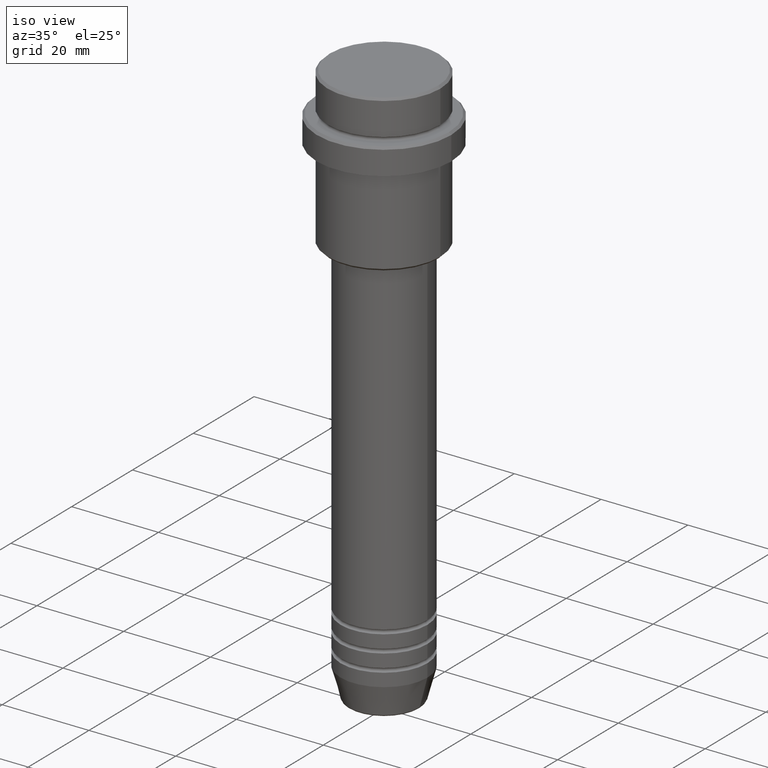
[diagram: clean part render]
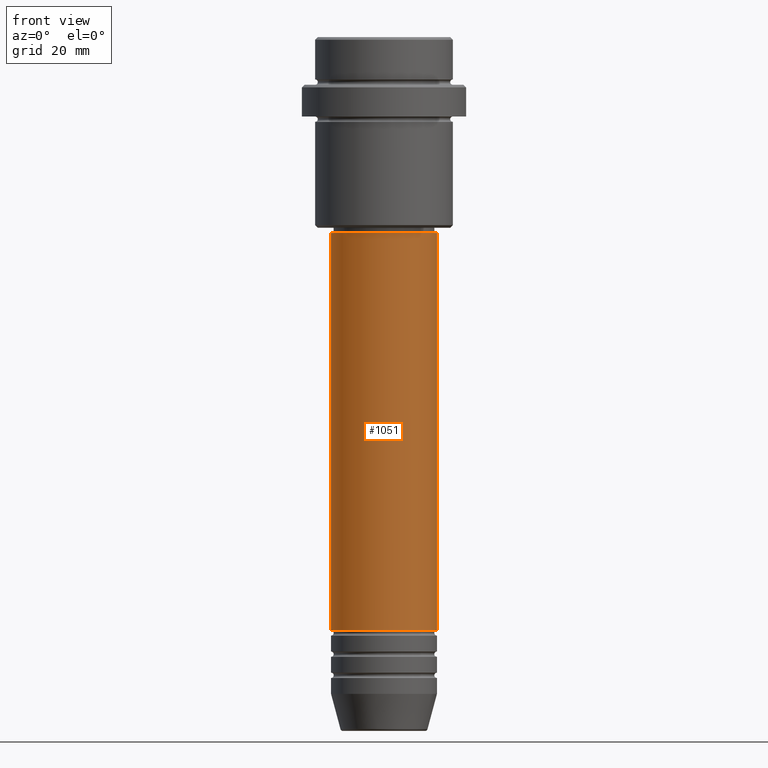
[diagram: tour spotlight — one face highlighted and labeled with its STEP entity id]
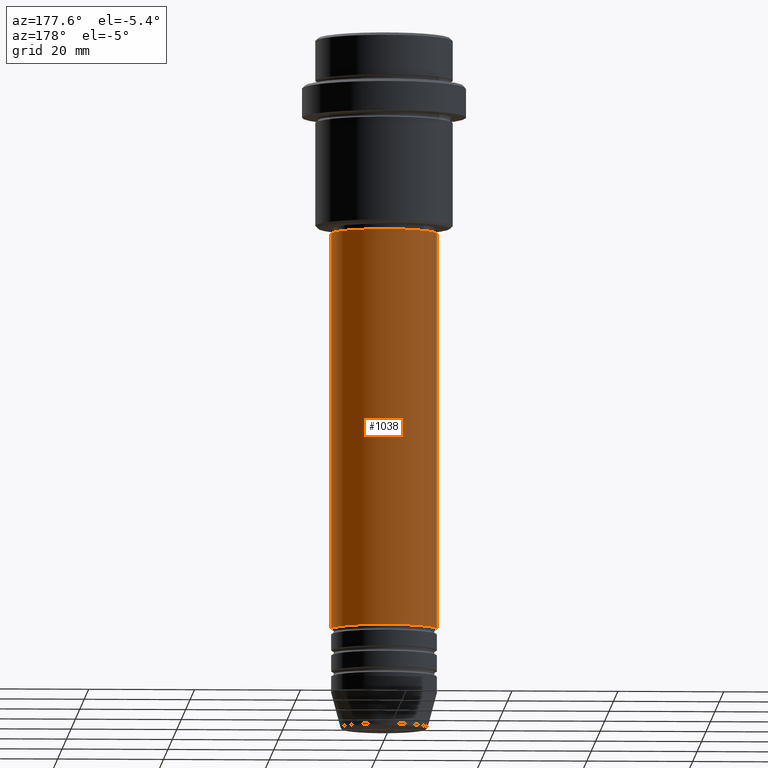
[diagram: tour spotlight — one face highlighted and labeled with its STEP entity id]
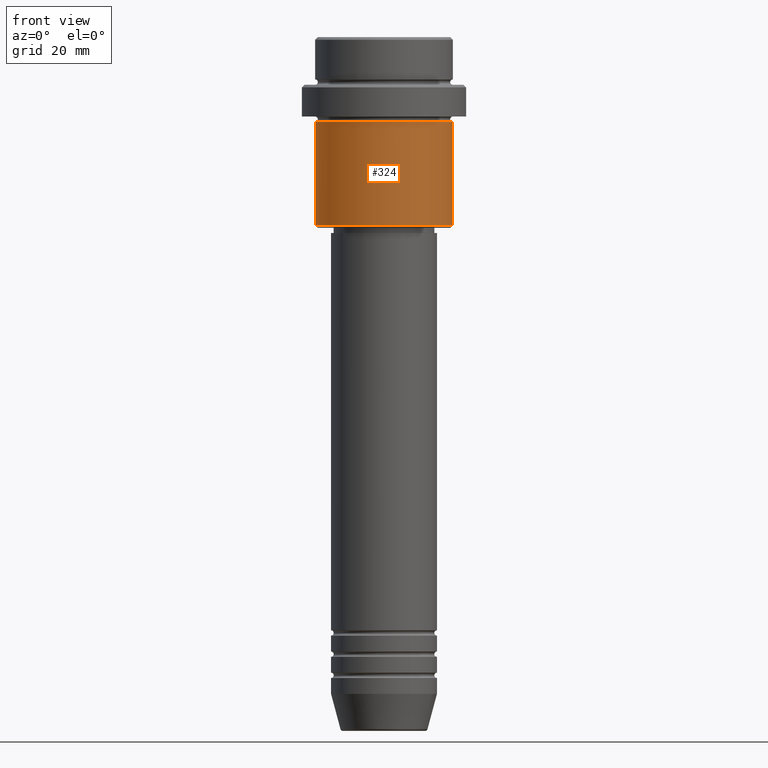
[diagram: tour spotlight — one face highlighted and labeled with its STEP entity id]
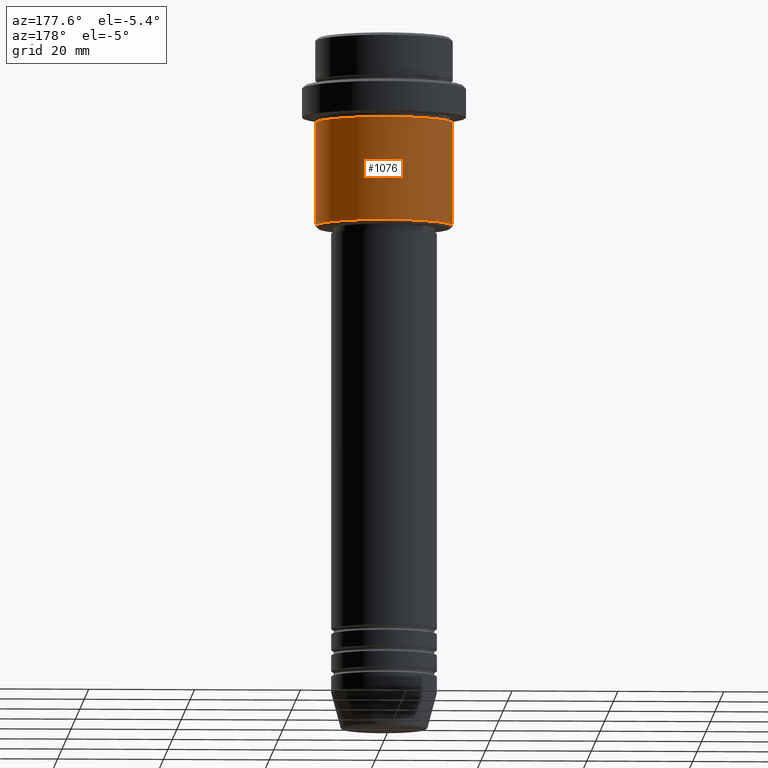
[diagram: tour spotlight — one face highlighted and labeled with its STEP entity id]
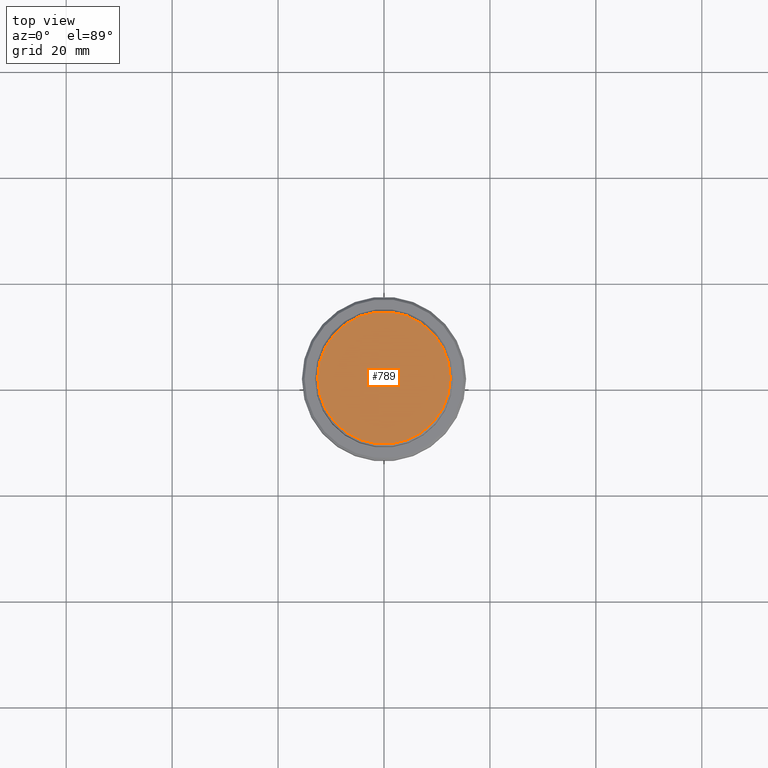
[diagram: tour spotlight — one face highlighted and labeled with its STEP entity id]
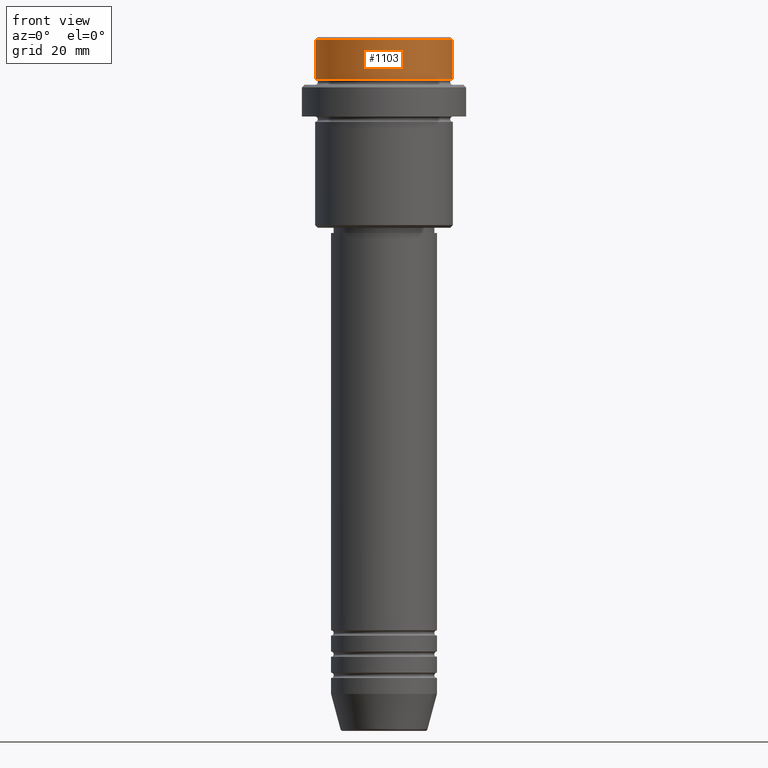
[diagram: tour spotlight — one face highlighted and labeled with its STEP entity id]
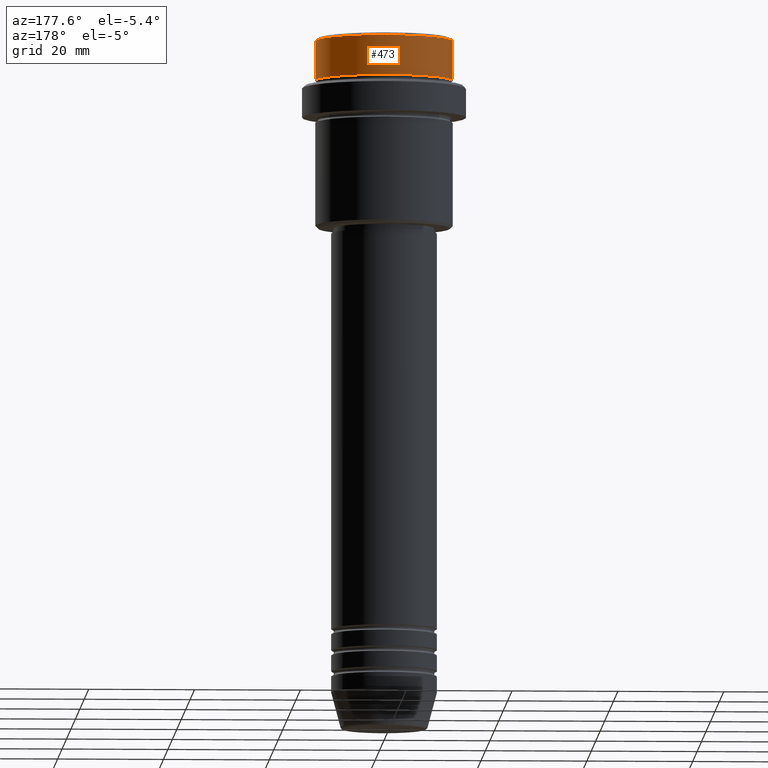
[diagram: tour spotlight — one face highlighted and labeled with its STEP entity id]
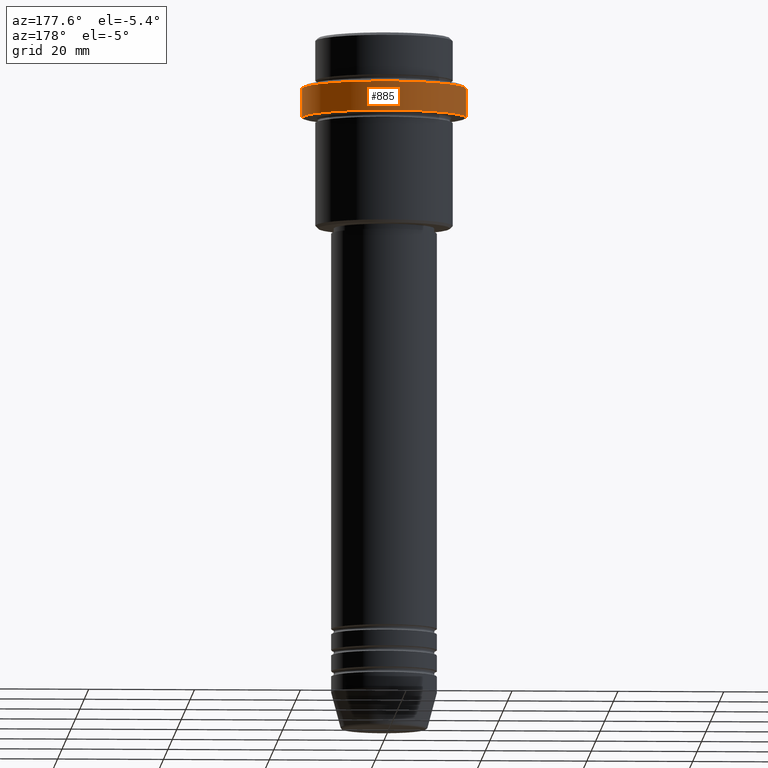
[diagram: tour spotlight — one face highlighted and labeled with its STEP entity id]
A machine part: a face-by-face anatomy tour. The part has 52 B-rep faces; the first image is the clean iso view, then the 8 largest visible faces are spotlighted one at a time (largest first), each with its STEP entity span.

Face 1 — front view, entity #1051. In plain terms, the highlighted cylindrical surface (partial cylindrical patch) has radius 10 mm, axis along (-0, -0, 1).
Definition (entity closure, byte-faithful):
#5 = DIRECTION ( 'NONE',  ( 1.000000000000000000, 0.000000000000000000, 0.000000000000000000 ) ) ;
#32 = ORIENTED_EDGE ( 'NONE', *, *, #422, .F. ) ;
#71 = VERTEX_POINT ( 'NONE', #961 ) ;
#75 = VERTEX_POINT ( 'NONE', #1401 ) ;
#112 = DIRECTION ( 'NONE',  ( -0.000000000000000000, -0.000000000000000000, 1.000000000000000000 ) ) ;
#125 = CARTESIAN_POINT ( 'NONE',  ( 10.00000000000000178, 0.000000000000000000, 0.000000000000000000 ) ) ;
#174 = EDGE_LOOP ( 'NONE', ( #576, #281, #233, #32 ) ) ;
#233 = ORIENTED_EDGE ( 'NONE', *, *, #1403, .T. ) ;
#237 = VERTEX_POINT ( 'NONE', #699 ) ;
#273 = CARTESIAN_POINT ( 'NONE',  ( 0.000000000000000000, 0.000000000000000000, 0.000000000000000000 ) ) ;
#281 = ORIENTED_EDGE ( 'NONE', *, *, #1381, .T. ) ;
#422 = EDGE_CURVE ( 'NONE', #237, #599, #1215, .T. ) ;
#516 = CIRCLE ( 'NONE', #1387, 10.00000000000000000 ) ;
#546 = CARTESIAN_POINT ( 'NONE',  ( 0.000000000000000000, 0.000000000000000000, -36.99999999999997158 ) ) ;
#555 = DIRECTION ( 'NONE',  ( -0.000000000000000000, -0.000000000000000000, 1.000000000000000000 ) ) ;
#565 = DIRECTION ( 'NONE',  ( -0.000000000000000000, -0.000000000000000000, 1.000000000000000000 ) ) ;
#576 = ORIENTED_EDGE ( 'NONE', *, *, #729, .F. ) ;
#592 = FACE_OUTER_BOUND ( 'NONE', #174, .T. ) ;
#599 = VERTEX_POINT ( 'NONE', #618 ) ;
#601 = DIRECTION ( 'NONE',  ( 1.000000000000000000, 0.000000000000000000, 0.000000000000000000 ) ) ;
#608 = AXIS2_PLACEMENT_3D ( 'NONE', #546, #112, #5 ) ;
#618 = CARTESIAN_POINT ( 'NONE',  ( 10.00000000000000178, 0.000000000000000000, -36.99999999999997158 ) ) ;
#699 = CARTESIAN_POINT ( 'NONE',  ( -10.00000000000000178, 1.224646799147353454E-15, -36.99999999999997158 ) ) ;
#719 = CARTESIAN_POINT ( 'NONE',  ( -10.00000000000000178, 1.224646799147353454E-15, 0.000000000000000000 ) ) ;
#729 = EDGE_CURVE ( 'NONE', #71, #237, #1259, .T. ) ;
#836 = DIRECTION ( 'NONE',  ( -0.000000000000000000, -0.000000000000000000, 1.000000000000000000 ) ) ;
#950 = VECTOR ( 'NONE', #836, 1000.000000000000000 ) ;
#961 = CARTESIAN_POINT ( 'NONE',  ( -10.00000000000000000, 1.224646799147353256E-15, -111.9999999999998721 ) ) ;
#1051 = ADVANCED_FACE ( 'NONE', ( #592 ), #1256, .T. ) ;
#1101 = LINE ( 'NONE', #125, #1190 ) ;
#1152 = AXIS2_PLACEMENT_3D ( 'NONE', #273, #1366, #601 ) ;
#1181 = DIRECTION ( 'NONE',  ( 1.000000000000000000, 0.000000000000000000, 0.000000000000000000 ) ) ;
#1190 = VECTOR ( 'NONE', #565, 1000.000000000000000 ) ;
#1215 = CIRCLE ( 'NONE', #608, 10.00000000000000178 ) ;
#1256 = CYLINDRICAL_SURFACE ( 'NONE', #1152, 10.00000000000000178 ) ;
#1259 = LINE ( 'NONE', #719, #950 ) ;
#1340 = CARTESIAN_POINT ( 'NONE',  ( 0.000000000000000000, 0.000000000000000000, -111.9999999999998721 ) ) ;
#1366 = DIRECTION ( 'NONE',  ( -0.000000000000000000, -0.000000000000000000, 1.000000000000000000 ) ) ;
#1381 = EDGE_CURVE ( 'NONE', #71, #75, #516, .T. ) ;
#1387 = AXIS2_PLACEMENT_3D ( 'NONE', #1340, #555, #1181 ) ;
#1401 = CARTESIAN_POINT ( 'NONE',  ( 10.00000000000000000, 0.000000000000000000, -111.9999999999998721 ) ) ;
#1403 = EDGE_CURVE ( 'NONE', #75, #599, #1101, .T. ) ;

Face 2 — auxiliary view, entity #1038. In plain terms, the highlighted cylindrical surface (partial cylindrical patch) has radius 10 mm, axis along (-0, -0, 1).
Definition (entity closure, byte-faithful):
#27 = ORIENTED_EDGE ( 'NONE', *, *, #729, .T. ) ;
#50 = DIRECTION ( 'NONE',  ( -0.000000000000000000, -0.000000000000000000, 1.000000000000000000 ) ) ;
#71 = VERTEX_POINT ( 'NONE', #961 ) ;
#75 = VERTEX_POINT ( 'NONE', #1401 ) ;
#125 = CARTESIAN_POINT ( 'NONE',  ( 10.00000000000000178, 0.000000000000000000, 0.000000000000000000 ) ) ;
#165 = DIRECTION ( 'NONE',  ( 1.000000000000000000, 0.000000000000000000, 0.000000000000000000 ) ) ;
#216 = EDGE_CURVE ( 'NONE', #75, #71, #536, .T. ) ;
#237 = VERTEX_POINT ( 'NONE', #699 ) ;
#384 = EDGE_LOOP ( 'NONE', ( #1323, #27, #1024, #821 ) ) ;
#443 = AXIS2_PLACEMENT_3D ( 'NONE', #1185, #1193, #967 ) ;
#536 = CIRCLE ( 'NONE', #1290, 10.00000000000000000 ) ;
#537 = CIRCLE ( 'NONE', #443, 10.00000000000000178 ) ;
#565 = DIRECTION ( 'NONE',  ( -0.000000000000000000, -0.000000000000000000, 1.000000000000000000 ) ) ;
#585 = CARTESIAN_POINT ( 'NONE',  ( 0.000000000000000000, 0.000000000000000000, 0.000000000000000000 ) ) ;
#599 = VERTEX_POINT ( 'NONE', #618 ) ;
#618 = CARTESIAN_POINT ( 'NONE',  ( 10.00000000000000178, 0.000000000000000000, -36.99999999999997158 ) ) ;
#695 = FACE_OUTER_BOUND ( 'NONE', #384, .T. ) ;
#699 = CARTESIAN_POINT ( 'NONE',  ( -10.00000000000000178, 1.224646799147353454E-15, -36.99999999999997158 ) ) ;
#704 = DIRECTION ( 'NONE',  ( 1.000000000000000000, 0.000000000000000000, 0.000000000000000000 ) ) ;
#719 = CARTESIAN_POINT ( 'NONE',  ( -10.00000000000000178, 1.224646799147353454E-15, 0.000000000000000000 ) ) ;
#729 = EDGE_CURVE ( 'NONE', #71, #237, #1259, .T. ) ;
#821 = ORIENTED_EDGE ( 'NONE', *, *, #1403, .F. ) ;
#836 = DIRECTION ( 'NONE',  ( -0.000000000000000000, -0.000000000000000000, 1.000000000000000000 ) ) ;
#928 = CYLINDRICAL_SURFACE ( 'NONE', #1242, 10.00000000000000178 ) ;
#931 = EDGE_CURVE ( 'NONE', #599, #237, #537, .T. ) ;
#950 = VECTOR ( 'NONE', #836, 1000.000000000000000 ) ;
#961 = CARTESIAN_POINT ( 'NONE',  ( -10.00000000000000000, 1.224646799147353256E-15, -111.9999999999998721 ) ) ;
#967 = DIRECTION ( 'NONE',  ( 1.000000000000000000, 0.000000000000000000, 0.000000000000000000 ) ) ;
#1024 = ORIENTED_EDGE ( 'NONE', *, *, #931, .F. ) ;
#1025 = DIRECTION ( 'NONE',  ( -0.000000000000000000, -0.000000000000000000, 1.000000000000000000 ) ) ;
#1030 = CARTESIAN_POINT ( 'NONE',  ( 0.000000000000000000, 0.000000000000000000, -111.9999999999998721 ) ) ;
#1038 = ADVANCED_FACE ( 'NONE', ( #695 ), #928, .T. ) ;
#1101 = LINE ( 'NONE', #125, #1190 ) ;
#1185 = CARTESIAN_POINT ( 'NONE',  ( 0.000000000000000000, 0.000000000000000000, -36.99999999999997158 ) ) ;
#1190 = VECTOR ( 'NONE', #565, 1000.000000000000000 ) ;
#1193 = DIRECTION ( 'NONE',  ( -0.000000000000000000, -0.000000000000000000, 1.000000000000000000 ) ) ;
#1242 = AXIS2_PLACEMENT_3D ( 'NONE', #585, #1025, #165 ) ;
#1259 = LINE ( 'NONE', #719, #950 ) ;
#1290 = AXIS2_PLACEMENT_3D ( 'NONE', #1030, #50, #704 ) ;
#1323 = ORIENTED_EDGE ( 'NONE', *, *, #216, .T. ) ;
#1401 = CARTESIAN_POINT ( 'NONE',  ( 10.00000000000000000, 0.000000000000000000, -111.9999999999998721 ) ) ;
#1403 = EDGE_CURVE ( 'NONE', #75, #599, #1101, .T. ) ;

Face 3 — front view, entity #324. In plain terms, the highlighted cylindrical surface (partial cylindrical patch) has radius 13 mm, axis along (-0, -0, 1).
Definition (entity closure, byte-faithful):
#49 = VERTEX_POINT ( 'NONE', #105 ) ;
#70 = CIRCLE ( 'NONE', #582, 13.00000000000000000 ) ;
#105 = CARTESIAN_POINT ( 'NONE',  ( -13.00000000000000000, 1.592040838891559095E-15, -35.49999999999999289 ) ) ;
#142 = DIRECTION ( 'NONE',  ( -0.000000000000000000, -0.000000000000000000, 1.000000000000000000 ) ) ;
#178 = EDGE_CURVE ( 'NONE', #662, #509, #763, .T. ) ;
#196 = DIRECTION ( 'NONE',  ( -0.000000000000000000, -0.000000000000000000, 1.000000000000000000 ) ) ;
#224 = DIRECTION ( 'NONE',  ( -1.000000000000000000, 0.000000000000000000, 0.000000000000000000 ) ) ;
#230 = CARTESIAN_POINT ( 'NONE',  ( 0.000000000000000000, 0.000000000000000000, -35.49999999999999289 ) ) ;
#232 = CARTESIAN_POINT ( 'NONE',  ( 13.00000000000000000, 0.000000000000000000, 0.000000000000000000 ) ) ;
#286 = ORIENTED_EDGE ( 'NONE', *, *, #294, .F. ) ;
#287 = AXIS2_PLACEMENT_3D ( 'NONE', #230, #450, #224 ) ;
#294 = EDGE_CURVE ( 'NONE', #49, #651, #819, .T. ) ;
#298 = FACE_OUTER_BOUND ( 'NONE', #812, .T. ) ;
#324 = ADVANCED_FACE ( 'NONE', ( #298 ), #1171, .T. ) ;
#351 = CARTESIAN_POINT ( 'NONE',  ( 13.00000000000000000, 0.000000000000000000, -16.00000000000000000 ) ) ;
#406 = EDGE_CURVE ( 'NONE', #49, #662, #420, .T. ) ;
#418 = CARTESIAN_POINT ( 'NONE',  ( 0.000000000000000000, 0.000000000000000000, 0.000000000000000000 ) ) ;
#419 = VECTOR ( 'NONE', #551, 1000.000000000000000 ) ;
#420 = CIRCLE ( 'NONE', #287, 13.00000000000000000 ) ;
#450 = DIRECTION ( 'NONE',  ( -0.000000000000000000, -0.000000000000000000, 1.000000000000000000 ) ) ;
#493 = ORIENTED_EDGE ( 'NONE', *, *, #178, .T. ) ;
#509 = VERTEX_POINT ( 'NONE', #351 ) ;
#531 = CARTESIAN_POINT ( 'NONE',  ( 0.000000000000000000, 0.000000000000000000, -16.00000000000000000 ) ) ;
#551 = DIRECTION ( 'NONE',  ( -0.000000000000000000, -0.000000000000000000, 1.000000000000000000 ) ) ;
#578 = VECTOR ( 'NONE', #142, 1000.000000000000000 ) ;
#582 = AXIS2_PLACEMENT_3D ( 'NONE', #531, #854, #1008 ) ;
#651 = VERTEX_POINT ( 'NONE', #1285 ) ;
#662 = VERTEX_POINT ( 'NONE', #1175 ) ;
#684 = AXIS2_PLACEMENT_3D ( 'NONE', #418, #196, #721 ) ;
#721 = DIRECTION ( 'NONE',  ( 1.000000000000000000, 0.000000000000000000, 0.000000000000000000 ) ) ;
#745 = EDGE_CURVE ( 'NONE', #651, #509, #70, .T. ) ;
#763 = LINE ( 'NONE', #232, #419 ) ;
#812 = EDGE_LOOP ( 'NONE', ( #286, #1214, #493, #930 ) ) ;
#819 = LINE ( 'NONE', #1117, #578 ) ;
#854 = DIRECTION ( 'NONE',  ( -0.000000000000000000, -0.000000000000000000, 1.000000000000000000 ) ) ;
#930 = ORIENTED_EDGE ( 'NONE', *, *, #745, .F. ) ;
#1008 = DIRECTION ( 'NONE',  ( 1.000000000000000000, 0.000000000000000000, 0.000000000000000000 ) ) ;
#1117 = CARTESIAN_POINT ( 'NONE',  ( -13.00000000000000000, 1.592040838891559095E-15, 0.000000000000000000 ) ) ;
#1171 = CYLINDRICAL_SURFACE ( 'NONE', #684, 13.00000000000000000 ) ;
#1175 = CARTESIAN_POINT ( 'NONE',  ( 13.00000000000000000, 0.000000000000000000, -35.49999999999999289 ) ) ;
#1214 = ORIENTED_EDGE ( 'NONE', *, *, #406, .T. ) ;
#1285 = CARTESIAN_POINT ( 'NONE',  ( -13.00000000000000000, 1.592040838891559095E-15, -16.00000000000000000 ) ) ;

Face 4 — auxiliary view, entity #1076. In plain terms, the highlighted cylindrical surface (partial cylindrical patch) has radius 13 mm, axis along (-0, -0, 1).
Definition (entity closure, byte-faithful):
#1 = CYLINDRICAL_SURFACE ( 'NONE', #19, 13.00000000000000000 ) ;
#19 = AXIS2_PLACEMENT_3D ( 'NONE', #1098, #432, #212 ) ;
#49 = VERTEX_POINT ( 'NONE', #105 ) ;
#86 = CARTESIAN_POINT ( 'NONE',  ( 0.000000000000000000, 0.000000000000000000, -35.49999999999999289 ) ) ;
#105 = CARTESIAN_POINT ( 'NONE',  ( -13.00000000000000000, 1.592040838891559095E-15, -35.49999999999999289 ) ) ;
#142 = DIRECTION ( 'NONE',  ( -0.000000000000000000, -0.000000000000000000, 1.000000000000000000 ) ) ;
#178 = EDGE_CURVE ( 'NONE', #662, #509, #763, .T. ) ;
#212 = DIRECTION ( 'NONE',  ( 1.000000000000000000, 0.000000000000000000, 0.000000000000000000 ) ) ;
#232 = CARTESIAN_POINT ( 'NONE',  ( 13.00000000000000000, 0.000000000000000000, 0.000000000000000000 ) ) ;
#246 = CIRCLE ( 'NONE', #1048, 13.00000000000000000 ) ;
#294 = EDGE_CURVE ( 'NONE', #49, #651, #819, .T. ) ;
#351 = CARTESIAN_POINT ( 'NONE',  ( 13.00000000000000000, 0.000000000000000000, -16.00000000000000000 ) ) ;
#359 = EDGE_CURVE ( 'NONE', #662, #49, #798, .T. ) ;
#419 = VECTOR ( 'NONE', #551, 1000.000000000000000 ) ;
#432 = DIRECTION ( 'NONE',  ( -0.000000000000000000, -0.000000000000000000, 1.000000000000000000 ) ) ;
#485 = ORIENTED_EDGE ( 'NONE', *, *, #178, .F. ) ;
#509 = VERTEX_POINT ( 'NONE', #351 ) ;
#514 = DIRECTION ( 'NONE',  ( -0.000000000000000000, -0.000000000000000000, 1.000000000000000000 ) ) ;
#551 = DIRECTION ( 'NONE',  ( -0.000000000000000000, -0.000000000000000000, 1.000000000000000000 ) ) ;
#553 = ORIENTED_EDGE ( 'NONE', *, *, #359, .T. ) ;
#578 = VECTOR ( 'NONE', #142, 1000.000000000000000 ) ;
#651 = VERTEX_POINT ( 'NONE', #1285 ) ;
#662 = VERTEX_POINT ( 'NONE', #1175 ) ;
#763 = LINE ( 'NONE', #232, #419 ) ;
#798 = CIRCLE ( 'NONE', #987, 13.00000000000000000 ) ;
#819 = LINE ( 'NONE', #1117, #578 ) ;
#833 = CARTESIAN_POINT ( 'NONE',  ( 0.000000000000000000, 0.000000000000000000, -16.00000000000000000 ) ) ;
#987 = AXIS2_PLACEMENT_3D ( 'NONE', #86, #514, #1400 ) ;
#1010 = ORIENTED_EDGE ( 'NONE', *, *, #294, .T. ) ;
#1046 = DIRECTION ( 'NONE',  ( 1.000000000000000000, 0.000000000000000000, 0.000000000000000000 ) ) ;
#1048 = AXIS2_PLACEMENT_3D ( 'NONE', #833, #1073, #1046 ) ;
#1073 = DIRECTION ( 'NONE',  ( -0.000000000000000000, -0.000000000000000000, 1.000000000000000000 ) ) ;
#1076 = ADVANCED_FACE ( 'NONE', ( #1284 ), #1, .T. ) ;
#1098 = CARTESIAN_POINT ( 'NONE',  ( 0.000000000000000000, 0.000000000000000000, 0.000000000000000000 ) ) ;
#1111 = EDGE_LOOP ( 'NONE', ( #553, #1010, #1316, #485 ) ) ;
#1117 = CARTESIAN_POINT ( 'NONE',  ( -13.00000000000000000, 1.592040838891559095E-15, 0.000000000000000000 ) ) ;
#1168 = EDGE_CURVE ( 'NONE', #509, #651, #246, .T. ) ;
#1175 = CARTESIAN_POINT ( 'NONE',  ( 13.00000000000000000, 0.000000000000000000, -35.49999999999999289 ) ) ;
#1284 = FACE_OUTER_BOUND ( 'NONE', #1111, .T. ) ;
#1285 = CARTESIAN_POINT ( 'NONE',  ( -13.00000000000000000, 1.592040838891559095E-15, -16.00000000000000000 ) ) ;
#1316 = ORIENTED_EDGE ( 'NONE', *, *, #1168, .F. ) ;
#1400 = DIRECTION ( 'NONE',  ( -1.000000000000000000, 0.000000000000000000, 0.000000000000000000 ) ) ;

Face 5 — top view, entity #789. In plain terms, the highlighted planar face has unit normal (0, -0, 1).
Definition (entity closure, byte-faithful):
#23 = EDGE_LOOP ( 'NONE', ( #612, #321 ) ) ;
#87 = DIRECTION ( 'NONE',  ( 0.000000000000000000, -0.000000000000000000, 1.000000000000000000 ) ) ;
#88 = CIRCLE ( 'NONE', #307, 12.50000000000001243 ) ;
#123 = CARTESIAN_POINT ( 'NONE',  ( 0.000000000000000000, 0.000000000000000000, 0.000000000000000000 ) ) ;
#147 = EDGE_CURVE ( 'NONE', #552, #333, #88, .T. ) ;
#155 = AXIS2_PLACEMENT_3D ( 'NONE', #1203, #434, #231 ) ;
#231 = DIRECTION ( 'NONE',  ( 1.000000000000000000, 0.000000000000000000, 0.000000000000000000 ) ) ;
#307 = AXIS2_PLACEMENT_3D ( 'NONE', #123, #1195, #547 ) ;
#321 = ORIENTED_EDGE ( 'NONE', *, *, #147, .T. ) ;
#333 = VERTEX_POINT ( 'NONE', #628 ) ;
#434 = DIRECTION ( 'NONE',  ( -0.000000000000000000, -0.000000000000000000, 1.000000000000000000 ) ) ;
#547 = DIRECTION ( 'NONE',  ( 1.000000000000000000, 0.000000000000000000, 0.000000000000000000 ) ) ;
#552 = VERTEX_POINT ( 'NONE', #1176 ) ;
#612 = ORIENTED_EDGE ( 'NONE', *, *, #859, .T. ) ;
#628 = CARTESIAN_POINT ( 'NONE',  ( -12.50000000000001243, 0.000000000000000000, 0.000000000000000000 ) ) ;
#789 = ADVANCED_FACE ( 'NONE', ( #856 ), #1415, .T. ) ;
#856 = FACE_OUTER_BOUND ( 'NONE', #23, .T. ) ;
#859 = EDGE_CURVE ( 'NONE', #333, #552, #1019, .T. ) ;
#1019 = CIRCLE ( 'NONE', #155, 12.50000000000001243 ) ;
#1176 = CARTESIAN_POINT ( 'NONE',  ( 12.50000000000001243, 1.561424668912876097E-15, 0.000000000000000000 ) ) ;
#1195 = DIRECTION ( 'NONE',  ( -0.000000000000000000, -0.000000000000000000, 1.000000000000000000 ) ) ;
#1203 = CARTESIAN_POINT ( 'NONE',  ( 0.000000000000000000, 0.000000000000000000, 0.000000000000000000 ) ) ;
#1276 = CARTESIAN_POINT ( 'NONE',  ( 0.000000000000000000, 0.000000000000000000, 0.000000000000000000 ) ) ;
#1313 = AXIS2_PLACEMENT_3D ( 'NONE', #1276, #87, #1396 ) ;
#1396 = DIRECTION ( 'NONE',  ( 1.000000000000000000, 0.000000000000000000, 0.000000000000000000 ) ) ;
#1415 = PLANE ( 'NONE',  #1313 ) ;

Face 6 — front view, entity #1103. In plain terms, the highlighted cylindrical surface (partial cylindrical patch) has radius 13 mm, axis along (-0, -0, 1).
Definition (entity closure, byte-faithful):
#6 = ORIENTED_EDGE ( 'NONE', *, *, #318, .T. ) ;
#20 = CARTESIAN_POINT ( 'NONE',  ( -12.99999999999999822, 1.592040838891558898E-15, -0.4999999999999761302 ) ) ;
#29 = ORIENTED_EDGE ( 'NONE', *, *, #388, .T. ) ;
#46 = CARTESIAN_POINT ( 'NONE',  ( -12.99999999999999822, 1.592040838891558898E-15, 0.000000000000000000 ) ) ;
#66 = VECTOR ( 'NONE', #907, 1000.000000000000000 ) ;
#77 = VERTEX_POINT ( 'NONE', #414 ) ;
#177 = AXIS2_PLACEMENT_3D ( 'NONE', #834, #963, #1384 ) ;
#208 = CARTESIAN_POINT ( 'NONE',  ( 0.000000000000000000, 0.000000000000000000, -7.999999999999998224 ) ) ;
#214 = CARTESIAN_POINT ( 'NONE',  ( 12.99999999999999822, 0.000000000000000000, 0.000000000000000000 ) ) ;
#235 = VERTEX_POINT ( 'NONE', #1132 ) ;
#275 = ORIENTED_EDGE ( 'NONE', *, *, #550, .F. ) ;
#303 = CYLINDRICAL_SURFACE ( 'NONE', #1274, 12.99999999999999822 ) ;
#318 = EDGE_CURVE ( 'NONE', #1237, #1304, #348, .T. ) ;
#348 = CIRCLE ( 'NONE', #177, 12.99999999999999822 ) ;
#388 = EDGE_CURVE ( 'NONE', #235, #1237, #1095, .T. ) ;
#414 = CARTESIAN_POINT ( 'NONE',  ( -12.99999999999999822, 1.592040838891558898E-15, -7.999999999999998224 ) ) ;
#444 = DIRECTION ( 'NONE',  ( -0.000000000000000000, -0.000000000000000000, 1.000000000000000000 ) ) ;
#550 = EDGE_CURVE ( 'NONE', #77, #1304, #690, .T. ) ;
#557 = CIRCLE ( 'NONE', #737, 12.99999999999999822 ) ;
#686 = EDGE_CURVE ( 'NONE', #77, #235, #557, .T. ) ;
#690 = LINE ( 'NONE', #46, #66 ) ;
#730 = FACE_OUTER_BOUND ( 'NONE', #911, .T. ) ;
#732 = DIRECTION ( 'NONE',  ( -0.000000000000000000, -0.000000000000000000, 1.000000000000000000 ) ) ;
#733 = VECTOR ( 'NONE', #444, 1000.000000000000000 ) ;
#737 = AXIS2_PLACEMENT_3D ( 'NONE', #208, #1279, #1405 ) ;
#826 = CARTESIAN_POINT ( 'NONE',  ( 12.99999999999999822, 0.000000000000000000, -0.4999999999999761302 ) ) ;
#834 = CARTESIAN_POINT ( 'NONE',  ( 0.000000000000000000, 0.000000000000000000, -0.4999999999999761302 ) ) ;
#907 = DIRECTION ( 'NONE',  ( -0.000000000000000000, -0.000000000000000000, 1.000000000000000000 ) ) ;
#911 = EDGE_LOOP ( 'NONE', ( #275, #1395, #29, #6 ) ) ;
#963 = DIRECTION ( 'NONE',  ( 0.000000000000000000, 0.000000000000000000, -1.000000000000000000 ) ) ;
#1068 = DIRECTION ( 'NONE',  ( 1.000000000000000000, 0.000000000000000000, 0.000000000000000000 ) ) ;
#1095 = LINE ( 'NONE', #214, #733 ) ;
#1103 = ADVANCED_FACE ( 'NONE', ( #730 ), #303, .T. ) ;
#1132 = CARTESIAN_POINT ( 'NONE',  ( 12.99999999999999822, 0.000000000000000000, -7.999999999999998224 ) ) ;
#1237 = VERTEX_POINT ( 'NONE', #826 ) ;
#1274 = AXIS2_PLACEMENT_3D ( 'NONE', #1294, #732, #1068 ) ;
#1279 = DIRECTION ( 'NONE',  ( -0.000000000000000000, -0.000000000000000000, 1.000000000000000000 ) ) ;
#1294 = CARTESIAN_POINT ( 'NONE',  ( 0.000000000000000000, 0.000000000000000000, 0.000000000000000000 ) ) ;
#1304 = VERTEX_POINT ( 'NONE', #20 ) ;
#1384 = DIRECTION ( 'NONE',  ( 1.000000000000000000, 0.000000000000000000, 0.000000000000000000 ) ) ;
#1395 = ORIENTED_EDGE ( 'NONE', *, *, #686, .T. ) ;
#1405 = DIRECTION ( 'NONE',  ( 1.000000000000000000, 0.000000000000000000, 0.000000000000000000 ) ) ;

Face 7 — auxiliary view, entity #473. In plain terms, the highlighted cylindrical surface (partial cylindrical patch) has radius 13 mm, axis along (-0, -0, 1).
Definition (entity closure, byte-faithful):
#20 = CARTESIAN_POINT ( 'NONE',  ( -12.99999999999999822, 1.592040838891558898E-15, -0.4999999999999761302 ) ) ;
#46 = CARTESIAN_POINT ( 'NONE',  ( -12.99999999999999822, 1.592040838891558898E-15, 0.000000000000000000 ) ) ;
#57 = DIRECTION ( 'NONE',  ( 0.000000000000000000, 0.000000000000000000, -1.000000000000000000 ) ) ;
#66 = VECTOR ( 'NONE', #907, 1000.000000000000000 ) ;
#77 = VERTEX_POINT ( 'NONE', #414 ) ;
#161 = FACE_OUTER_BOUND ( 'NONE', #163, .T. ) ;
#163 = EDGE_LOOP ( 'NONE', ( #936, #280, #886, #1058 ) ) ;
#214 = CARTESIAN_POINT ( 'NONE',  ( 12.99999999999999822, 0.000000000000000000, 0.000000000000000000 ) ) ;
#222 = AXIS2_PLACEMENT_3D ( 'NONE', #1029, #57, #922 ) ;
#235 = VERTEX_POINT ( 'NONE', #1132 ) ;
#280 = ORIENTED_EDGE ( 'NONE', *, *, #550, .T. ) ;
#371 = CARTESIAN_POINT ( 'NONE',  ( 0.000000000000000000, 0.000000000000000000, 0.000000000000000000 ) ) ;
#382 = CARTESIAN_POINT ( 'NONE',  ( 0.000000000000000000, 0.000000000000000000, -7.999999999999998224 ) ) ;
#388 = EDGE_CURVE ( 'NONE', #235, #1237, #1095, .T. ) ;
#414 = CARTESIAN_POINT ( 'NONE',  ( -12.99999999999999822, 1.592040838891558898E-15, -7.999999999999998224 ) ) ;
#444 = DIRECTION ( 'NONE',  ( -0.000000000000000000, -0.000000000000000000, 1.000000000000000000 ) ) ;
#465 = EDGE_CURVE ( 'NONE', #235, #77, #869, .T. ) ;
#473 = ADVANCED_FACE ( 'NONE', ( #161 ), #606, .T. ) ;
#487 = DIRECTION ( 'NONE',  ( -0.000000000000000000, -0.000000000000000000, 1.000000000000000000 ) ) ;
#550 = EDGE_CURVE ( 'NONE', #77, #1304, #690, .T. ) ;
#606 = CYLINDRICAL_SURFACE ( 'NONE', #1065, 12.99999999999999822 ) ;
#666 = AXIS2_PLACEMENT_3D ( 'NONE', #382, #487, #923 ) ;
#690 = LINE ( 'NONE', #46, #66 ) ;
#733 = VECTOR ( 'NONE', #444, 1000.000000000000000 ) ;
#794 = DIRECTION ( 'NONE',  ( -0.000000000000000000, -0.000000000000000000, 1.000000000000000000 ) ) ;
#826 = CARTESIAN_POINT ( 'NONE',  ( 12.99999999999999822, 0.000000000000000000, -0.4999999999999761302 ) ) ;
#835 = EDGE_CURVE ( 'NONE', #1304, #1237, #1390, .T. ) ;
#869 = CIRCLE ( 'NONE', #666, 12.99999999999999822 ) ;
#886 = ORIENTED_EDGE ( 'NONE', *, *, #835, .T. ) ;
#907 = DIRECTION ( 'NONE',  ( -0.000000000000000000, -0.000000000000000000, 1.000000000000000000 ) ) ;
#922 = DIRECTION ( 'NONE',  ( 1.000000000000000000, 0.000000000000000000, 0.000000000000000000 ) ) ;
#923 = DIRECTION ( 'NONE',  ( 1.000000000000000000, 0.000000000000000000, 0.000000000000000000 ) ) ;
#936 = ORIENTED_EDGE ( 'NONE', *, *, #465, .T. ) ;
#1029 = CARTESIAN_POINT ( 'NONE',  ( 0.000000000000000000, 0.000000000000000000, -0.4999999999999761302 ) ) ;
#1058 = ORIENTED_EDGE ( 'NONE', *, *, #388, .F. ) ;
#1065 = AXIS2_PLACEMENT_3D ( 'NONE', #371, #794, #1234 ) ;
#1095 = LINE ( 'NONE', #214, #733 ) ;
#1132 = CARTESIAN_POINT ( 'NONE',  ( 12.99999999999999822, 0.000000000000000000, -7.999999999999998224 ) ) ;
#1234 = DIRECTION ( 'NONE',  ( 1.000000000000000000, 0.000000000000000000, 0.000000000000000000 ) ) ;
#1237 = VERTEX_POINT ( 'NONE', #826 ) ;
#1304 = VERTEX_POINT ( 'NONE', #20 ) ;
#1390 = CIRCLE ( 'NONE', #222, 12.99999999999999822 ) ;

Face 8 — auxiliary view, entity #885. In plain terms, the highlighted cylindrical surface (partial cylindrical patch) has radius 15.5 mm, axis along (-0, -0, 1).
Definition (entity closure, byte-faithful):
#2 = CYLINDRICAL_SURFACE ( 'NONE', #491, 15.50000000000000000 ) ;
#40 = CIRCLE ( 'NONE', #1270, 15.50000000000000000 ) ;
#175 = CARTESIAN_POINT ( 'NONE',  ( 15.50000000000000000, 0.000000000000000000, 0.000000000000000000 ) ) ;
#197 = DIRECTION ( 'NONE',  ( -0.000000000000000000, -0.000000000000000000, 1.000000000000000000 ) ) ;
#250 = CARTESIAN_POINT ( 'NONE',  ( 0.000000000000000000, 0.000000000000000000, -9.499999999999971578 ) ) ;
#296 = DIRECTION ( 'NONE',  ( -0.000000000000000000, -0.000000000000000000, 1.000000000000000000 ) ) ;
#299 = ORIENTED_EDGE ( 'NONE', *, *, #769, .T. ) ;
#306 = DIRECTION ( 'NONE',  ( -0.000000000000000000, -0.000000000000000000, 1.000000000000000000 ) ) ;
#367 = ORIENTED_EDGE ( 'NONE', *, *, #1230, .F. ) ;
#403 = CARTESIAN_POINT ( 'NONE',  ( 15.50000000000000000, 0.000000000000000000, -9.499999999999971578 ) ) ;
#477 = VERTEX_POINT ( 'NONE', #1147 ) ;
#489 = CARTESIAN_POINT ( 'NONE',  ( 0.000000000000000000, 0.000000000000000000, -15.00000000000000178 ) ) ;
#491 = AXIS2_PLACEMENT_3D ( 'NONE', #974, #306, #525 ) ;
#497 = EDGE_LOOP ( 'NONE', ( #661, #299, #831, #367 ) ) ;
#510 = EDGE_CURVE ( 'NONE', #1033, #682, #758, .T. ) ;
#525 = DIRECTION ( 'NONE',  ( 1.000000000000000000, 0.000000000000000000, 0.000000000000000000 ) ) ;
#532 = CARTESIAN_POINT ( 'NONE',  ( -15.50000000000000000, 1.898202538678397557E-15, 0.000000000000000000 ) ) ;
#619 = CARTESIAN_POINT ( 'NONE',  ( -15.50000000000000000, 1.898202538678397557E-15, -9.499999999999971578 ) ) ;
#661 = ORIENTED_EDGE ( 'NONE', *, *, #757, .T. ) ;
#675 = DIRECTION ( 'NONE',  ( 0.000000000000000000, 0.000000000000000000, -1.000000000000000000 ) ) ;
#682 = VERTEX_POINT ( 'NONE', #403 ) ;
#685 = VERTEX_POINT ( 'NONE', #957 ) ;
#757 = EDGE_CURVE ( 'NONE', #685, #477, #40, .T. ) ;
#758 = CIRCLE ( 'NONE', #779, 15.50000000000000000 ) ;
#769 = EDGE_CURVE ( 'NONE', #477, #1033, #848, .T. ) ;
#779 = AXIS2_PLACEMENT_3D ( 'NONE', #250, #675, #1116 ) ;
#811 = DIRECTION ( 'NONE',  ( -0.000000000000000000, -0.000000000000000000, 1.000000000000000000 ) ) ;
#831 = ORIENTED_EDGE ( 'NONE', *, *, #510, .T. ) ;
#848 = LINE ( 'NONE', #532, #1197 ) ;
#885 = ADVANCED_FACE ( 'NONE', ( #975 ), #2, .T. ) ;
#957 = CARTESIAN_POINT ( 'NONE',  ( 15.50000000000000000, 0.000000000000000000, -15.00000000000000178 ) ) ;
#974 = CARTESIAN_POINT ( 'NONE',  ( 0.000000000000000000, 0.000000000000000000, 0.000000000000000000 ) ) ;
#975 = FACE_OUTER_BOUND ( 'NONE', #497, .T. ) ;
#1033 = VERTEX_POINT ( 'NONE', #619 ) ;
#1116 = DIRECTION ( 'NONE',  ( 1.000000000000000000, 0.000000000000000000, 0.000000000000000000 ) ) ;
#1147 = CARTESIAN_POINT ( 'NONE',  ( -15.50000000000000000, 1.898202538678397557E-15, -15.00000000000000178 ) ) ;
#1197 = VECTOR ( 'NONE', #197, 1000.000000000000000 ) ;
#1230 = EDGE_CURVE ( 'NONE', #685, #682, #1280, .T. ) ;
#1270 = AXIS2_PLACEMENT_3D ( 'NONE', #489, #811, #1338 ) ;
#1280 = LINE ( 'NONE', #175, #1393 ) ;
#1338 = DIRECTION ( 'NONE',  ( 1.000000000000000000, 0.000000000000000000, 0.000000000000000000 ) ) ;
#1393 = VECTOR ( 'NONE', #296, 1000.000000000000000 ) ;